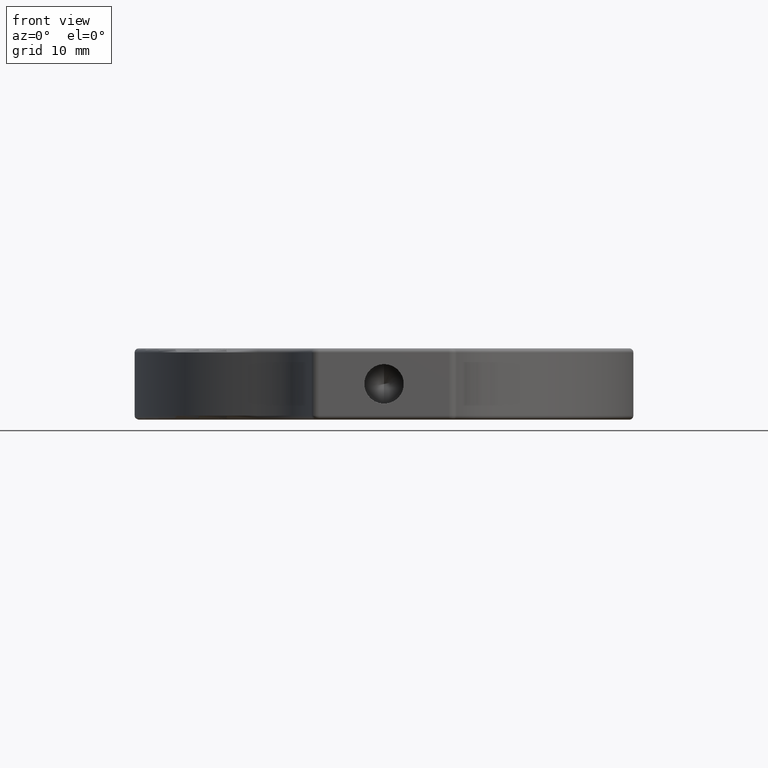
[diagram: clean part render]
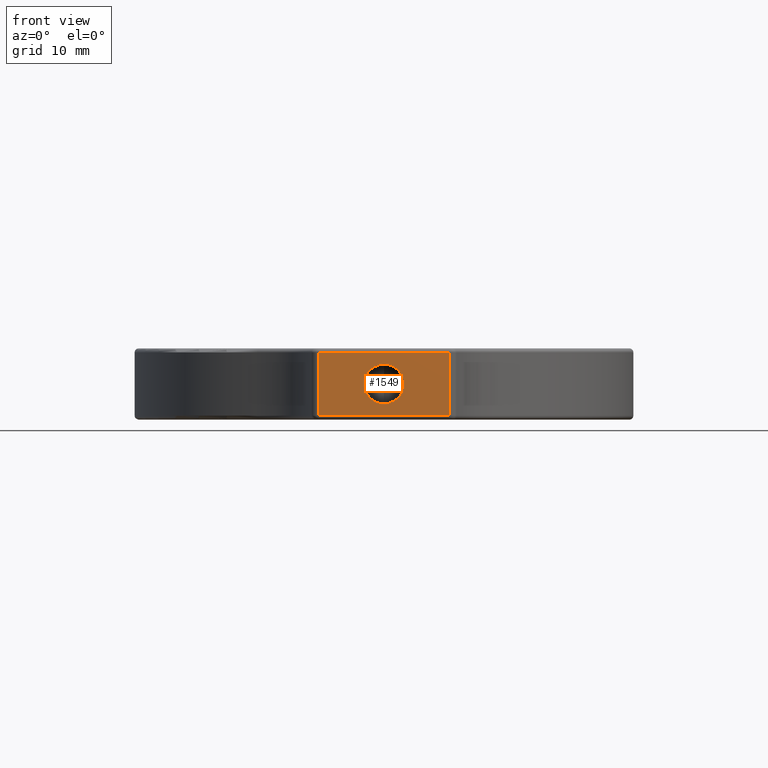
[diagram: same view with one face highlighted and labeled with its STEP entity id]
A machine part, front view. The second image highlights one B-rep face of the part: STEP entity #1549.
In plain terms, the highlighted planar face has unit normal (0, 1, 0).
Its self-contained STEP definition (entity closure, byte-faithful):
#22 = VERTEX_POINT ( 'NONE', #1491 ) ;
#23 = EDGE_LOOP ( 'NONE', ( #1440, #2614, #1931, #1014 ) ) ;
#42 = CIRCLE ( 'NONE', #1584, 2.499999999999999100 ) ;
#56 = CARTESIAN_POINT ( 'NONE',  ( 15.96392232975974000, -30.04115016188536600, 2.000000000007276000 ) ) ;
#93 = VERTEX_POINT ( 'NONE', #545 ) ;
#104 = CIRCLE ( 'NONE', #2427, 2.499999999999999100 ) ;
#188 = ORIENTED_EDGE ( 'NONE', *, *, #1853, .F. ) ;
#252 = VERTEX_POINT ( 'NONE', #2109 ) ;
#335 = EDGE_CURVE ( 'NONE', #252, #93, #1159, .T. ) ;
#404 = CARTESIAN_POINT ( 'NONE',  ( 15.96392232975974000, -30.04115016188536600, 4.500000000007275100 ) ) ;
#497 = CARTESIAN_POINT ( 'NONE',  ( 15.96392232975974000, -30.04115016188536600, 0.5000000000072767300 ) ) ;
#506 = DIRECTION ( 'NONE',  ( -1.000000000000000000, 0.0000000000000000000, -0.0000000000000000000 ) ) ;
#538 = EDGE_CURVE ( 'NONE', #600, #2065, #42, .T. ) ;
#545 = CARTESIAN_POINT ( 'NONE',  ( 24.20032352486365900, -30.04115016188536600, 0.5000000000072767300 ) ) ;
#572 = EDGE_LOOP ( 'NONE', ( #188, #1503 ) ) ;
#600 = VERTEX_POINT ( 'NONE', #1151 ) ;
#695 = VECTOR ( 'NONE', #1645, 1000.000000000000000 ) ;
#713 = DIRECTION ( 'NONE',  ( 0.0000000000000000000, -0.0000000000000000000, 1.000000000000000000 ) ) ;
#874 = DIRECTION ( 'NONE',  ( -0.0000000000000000000, -1.000000000000000000, -0.0000000000000000000 ) ) ;
#889 = FACE_BOUND ( 'NONE', #572, .T. ) ;
#1014 = ORIENTED_EDGE ( 'NONE', *, *, #2204, .T. ) ;
#1060 = CARTESIAN_POINT ( 'NONE',  ( 24.20032352486365900, -30.04115016188536600, 9.000000000007276000 ) ) ;
#1151 = CARTESIAN_POINT ( 'NONE',  ( 15.96392232975974000, -30.04115016188536600, 7.000000000007275100 ) ) ;
#1159 = LINE ( 'NONE', #1060, #1325 ) ;
#1262 = EDGE_CURVE ( 'NONE', #2399, #22, #2759, .T. ) ;
#1280 = VECTOR ( 'NONE', #1789, 1000.000000000000000 ) ;
#1325 = VECTOR ( 'NONE', #1443, 1000.000000000000000 ) ;
#1351 = CARTESIAN_POINT ( 'NONE',  ( 15.96392232975974000, -30.04115016188536600, 9.000000000007276000 ) ) ;
#1361 = PLANE ( 'NONE',  #1607 ) ;
#1396 = CARTESIAN_POINT ( 'NONE',  ( 7.727521134655825500, -30.04115016188536600, 8.500000000007276000 ) ) ;
#1440 = ORIENTED_EDGE ( 'NONE', *, *, #335, .F. ) ;
#1443 = DIRECTION ( 'NONE',  ( -0.0000000000000000000, -0.0000000000000000000, -1.000000000000000000 ) ) ;
#1483 = FACE_OUTER_BOUND ( 'NONE', #23, .T. ) ;
#1491 = CARTESIAN_POINT ( 'NONE',  ( 7.727521134655825500, -30.04115016188536600, 0.5000000000072767300 ) ) ;
#1503 = ORIENTED_EDGE ( 'NONE', *, *, #538, .F. ) ;
#1549 = ADVANCED_FACE ( 'NONE', ( #889, #1483 ), #1361, .F. ) ;
#1577 = CARTESIAN_POINT ( 'NONE',  ( 15.96392232975974000, -30.04115016188536600, 4.500000000007275100 ) ) ;
#1584 = AXIS2_PLACEMENT_3D ( 'NONE', #1577, #2003, #1768 ) ;
#1586 = LINE ( 'NONE', #497, #1280 ) ;
#1607 = AXIS2_PLACEMENT_3D ( 'NONE', #1351, #2194, #713 ) ;
#1610 = CARTESIAN_POINT ( 'NONE',  ( 7.727521134655825500, -30.04115016188536600, 8.500000000007276000 ) ) ;
#1645 = DIRECTION ( 'NONE',  ( -0.0000000000000000000, -0.0000000000000000000, -1.000000000000000000 ) ) ;
#1768 = DIRECTION ( 'NONE',  ( 0.0000000000000000000, 0.0000000000000000000, -1.000000000000000000 ) ) ;
#1789 = DIRECTION ( 'NONE',  ( 1.000000000000000000, -0.0000000000000000000, 0.0000000000000000000 ) ) ;
#1853 = EDGE_CURVE ( 'NONE', #2065, #600, #104, .T. ) ;
#1931 = ORIENTED_EDGE ( 'NONE', *, *, #1262, .T. ) ;
#2003 = DIRECTION ( 'NONE',  ( -0.0000000000000000000, -1.000000000000000000, -0.0000000000000000000 ) ) ;
#2065 = VERTEX_POINT ( 'NONE', #56 ) ;
#2109 = CARTESIAN_POINT ( 'NONE',  ( 24.20032352486365900, -30.04115016188536600, 8.500000000007276000 ) ) ;
#2170 = EDGE_CURVE ( 'NONE', #252, #2399, #2626, .T. ) ;
#2194 = DIRECTION ( 'NONE',  ( 0.0000000000000000000, 1.000000000000000000, 0.0000000000000000000 ) ) ;
#2204 = EDGE_CURVE ( 'NONE', #22, #93, #1586, .T. ) ;
#2399 = VERTEX_POINT ( 'NONE', #1396 ) ;
#2419 = VECTOR ( 'NONE', #506, 1000.000000000000000 ) ;
#2427 = AXIS2_PLACEMENT_3D ( 'NONE', #404, #874, #2573 ) ;
#2573 = DIRECTION ( 'NONE',  ( 0.0000000000000000000, 0.0000000000000000000, -1.000000000000000000 ) ) ;
#2614 = ORIENTED_EDGE ( 'NONE', *, *, #2170, .T. ) ;
#2626 = LINE ( 'NONE', #1610, #2419 ) ;
#2740 = CARTESIAN_POINT ( 'NONE',  ( 7.727521134655825500, -30.04115016188536600, 9.000000000007276000 ) ) ;
#2759 = LINE ( 'NONE', #2740, #695 ) ;